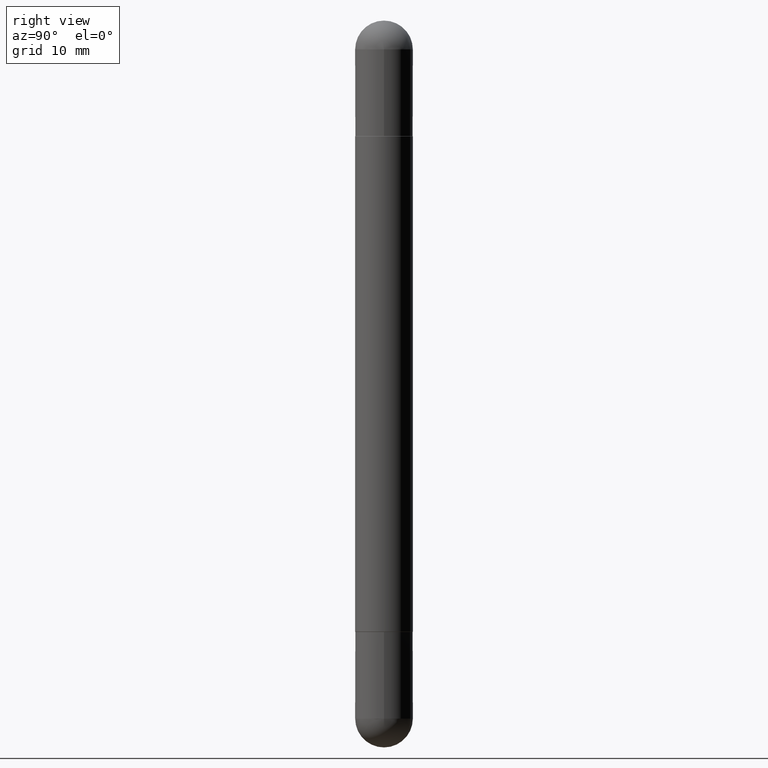
[diagram: clean part render]
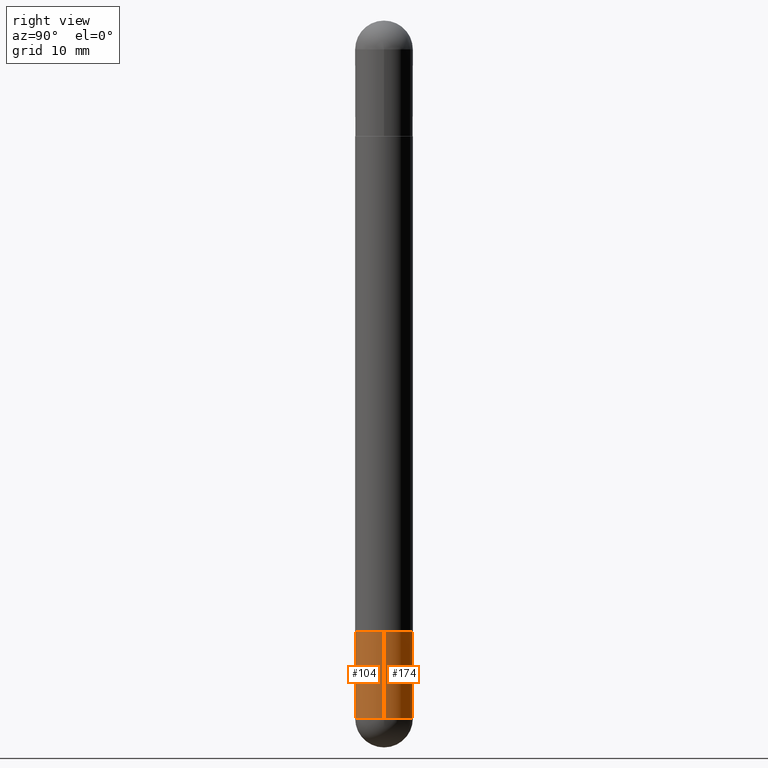
[diagram: same view with one multi-face feature highlighted, each face labeled with its STEP entity id]
A machine part, right view. The highlighted faces form ONE feature: a constant-radius fillet chain: 2 tangent blend faces with common blend radius 2.5006 mm. The faces share edges in the B-rep.
Their STEP definitions:
[1] entity #104 (Cylinder):
#57 = ORIENTED_EDGE ( 'NONE', *, *, #240, .T. ) ;
#70 = ORIENTED_EDGE ( 'NONE', *, *, #270, .F. ) ;
#78 = DIRECTION ( 'NONE',  ( -2.445468806185136597E-29, 3.491481338843145583E-15, 1.000000000000000000 ) ) ;
#104 = ADVANCED_FACE ( 'NONE', ( #731 ), #670, .T. ) ;
#106 = DIRECTION ( 'NONE',  ( 1.000000000000000000, -6.982962677686266711E-15, 4.876176775795935793E-29 ) ) ;
#115 = CARTESIAN_POINT ( 'NONE',  ( 5.824739876012068780E-29, -8.316184826923546689E-15, -2.381850000000000467 ) ) ;
#121 = DIRECTION ( 'NONE',  ( 1.000000000000000000, -6.982962677686265922E-15, 0.000000000000000000 ) ) ;
#126 = AXIS2_PLACEMENT_3D ( 'NONE', #738, #301, #106 ) ;
#132 = DIRECTION ( 'NONE',  ( -2.445468806185136597E-29, 3.491481338843145583E-15, 1.000000000000000000 ) ) ;
#188 = DIRECTION ( 'NONE',  ( -2.445468806185136877E-29, 3.491481338843145188E-15, 1.000000000000000000 ) ) ;
#201 = DIRECTION ( 'NONE',  ( 1.000000000000000000, -6.982962677686273810E-15, 0.000000000000000000 ) ) ;
#220 = LINE ( 'NONE', #695, #455 ) ;
#240 = EDGE_CURVE ( 'NONE', #491, #658, #680, .T. ) ;
#261 = EDGE_CURVE ( 'NONE', #658, #544, #563, .T. ) ;
#270 = EDGE_CURVE ( 'NONE', #298, #544, #377, .T. ) ;
#298 = VERTEX_POINT ( 'NONE', #385 ) ;
#301 = DIRECTION ( 'NONE',  ( -2.445468806185136597E-29, 3.491481338843145583E-15, 1.000000000000000000 ) ) ;
#329 = ORIENTED_EDGE ( 'NONE', *, *, #618, .T. ) ;
#340 = AXIS2_PLACEMENT_3D ( 'NONE', #115, #369, #460 ) ;
#342 = CARTESIAN_POINT ( 'NONE',  ( -6.995293233557624958E-16, -0.09845000000000865559, -2.381850000000000023 ) ) ;
#352 = CARTESIAN_POINT ( 'NONE',  ( -0.09845000000000000973, -7.101225570921009731E-15, -2.381850000000000467 ) ) ;
#356 = ORIENTED_EDGE ( 'NONE', *, *, #386, .F. ) ;
#369 = DIRECTION ( 'NONE',  ( -2.445468806185136597E-29, 3.491481338843145583E-15, 1.000000000000000000 ) ) ;
#377 = CIRCLE ( 'NONE', #536, 0.09844999999999999585 ) ;
#385 = CARTESIAN_POINT ( 'NONE',  ( -0.09844999999999999585, -7.101225570921008942E-15, -2.086600000000000232 ) ) ;
#386 = EDGE_CURVE ( 'NONE', #573, #298, #220, .T. ) ;
#455 = VECTOR ( 'NONE', #645, 39.37007874015748143 ) ;
#460 = DIRECTION ( 'NONE',  ( 1.000000000000000000, -6.982962677686273810E-15, 0.000000000000000000 ) ) ;
#491 = VERTEX_POINT ( 'NONE', #342 ) ;
#536 = AXIS2_PLACEMENT_3D ( 'NONE', #751, #78, #121 ) ;
#538 = CARTESIAN_POINT ( 'NONE',  ( 0.09844999999999999585, -7.972797637248321554E-15, -2.086600000000000232 ) ) ;
#544 = VERTEX_POINT ( 'NONE', #538 ) ;
#560 = CARTESIAN_POINT ( 'NONE',  ( 5.824739876012068780E-29, -8.316184826923546689E-15, -2.381850000000000467 ) ) ;
#563 = LINE ( 'NONE', #748, #638 ) ;
#573 = VERTEX_POINT ( 'NONE', #352 ) ;
#618 = EDGE_CURVE ( 'NONE', #573, #491, #629, .T. ) ;
#628 = AXIS2_PLACEMENT_3D ( 'NONE', #560, #132, #201 ) ;
#629 = CIRCLE ( 'NONE', #340, 0.09845000000000000973 ) ;
#638 = VECTOR ( 'NONE', #188, 39.37007874015748143 ) ;
#645 = DIRECTION ( 'NONE',  ( -2.445468806185136877E-29, 3.491481338843145188E-15, 1.000000000000000000 ) ) ;
#653 = CARTESIAN_POINT ( 'NONE',  ( 0.09845000000000000973, -8.488227569895042768E-15, -2.381850000000000467 ) ) ;
#658 = VERTEX_POINT ( 'NONE', #653 ) ;
#670 = CYLINDRICAL_SURFACE ( 'NONE', #126, 0.09845000000000000973 ) ;
#680 = CIRCLE ( 'NONE', #628, 0.09845000000000000973 ) ;
#695 = CARTESIAN_POINT ( 'NONE',  ( -0.09845000000000000973, 6.995293233558187021E-16, -4.842691596355954742E-30 ) ) ;
#696 = ORIENTED_EDGE ( 'NONE', *, *, #261, .T. ) ;
#731 = FACE_OUTER_BOUND ( 'NONE', #745, .T. ) ;
#738 = CARTESIAN_POINT ( 'NONE',  ( 0.000000000000000000, 0.000000000000000000, 0.000000000000000000 ) ) ;
#745 = EDGE_LOOP ( 'NONE', ( #356, #329, #57, #696, #70 ) ) ;
#748 = CARTESIAN_POINT ( 'NONE',  ( 0.09845000000000000973, -6.874726756182130531E-16, 4.800596035771099214E-30 ) ) ;
#751 = CARTESIAN_POINT ( 'NONE',  ( 5.102715210985907397E-29, -7.285324961630108994E-15, -2.086600000000000232 ) ) ;
[2] entity #174 (Cylinder):
#33 = CARTESIAN_POINT ( 'NONE',  ( 5.824739876012068780E-29, -8.316184826923546689E-15, -2.381850000000000467 ) ) ;
#61 = ORIENTED_EDGE ( 'NONE', *, *, #261, .F. ) ;
#62 = CIRCLE ( 'NONE', #507, 0.09845000000000000973 ) ;
#73 = DIRECTION ( 'NONE',  ( 1.000000000000000000, -6.982962677686265922E-15, 0.000000000000000000 ) ) ;
#124 = DIRECTION ( 'NONE',  ( -2.445468806185136597E-29, 3.491481338843145583E-15, 1.000000000000000000 ) ) ;
#138 = CIRCLE ( 'NONE', #494, 0.09845000000000000973 ) ;
#150 = CIRCLE ( 'NONE', #556, 0.09844999999999999585 ) ;
#174 = ADVANCED_FACE ( 'NONE', ( #371 ), #475, .T. ) ;
#177 = DIRECTION ( 'NONE',  ( -2.445468806185136597E-29, 3.491481338843145583E-15, 1.000000000000000000 ) ) ;
#188 = DIRECTION ( 'NONE',  ( -2.445468806185136877E-29, 3.491481338843145188E-15, 1.000000000000000000 ) ) ;
#199 = EDGE_CURVE ( 'NONE', #658, #348, #62, .T. ) ;
#220 = LINE ( 'NONE', #695, #455 ) ;
#257 = CARTESIAN_POINT ( 'NONE',  ( 5.102715210985907397E-29, -7.285324961630108994E-15, -2.086600000000000232 ) ) ;
#258 = DIRECTION ( 'NONE',  ( -2.445468806185136597E-29, 3.491481338843145583E-15, 1.000000000000000000 ) ) ;
#261 = EDGE_CURVE ( 'NONE', #658, #544, #563, .T. ) ;
#298 = VERTEX_POINT ( 'NONE', #385 ) ;
#300 = EDGE_CURVE ( 'NONE', #348, #573, #138, .T. ) ;
#327 = EDGE_CURVE ( 'NONE', #544, #298, #150, .T. ) ;
#348 = VERTEX_POINT ( 'NONE', #566 ) ;
#352 = CARTESIAN_POINT ( 'NONE',  ( -0.09845000000000000973, -7.101225570921009731E-15, -2.381850000000000467 ) ) ;
#366 = CARTESIAN_POINT ( 'NONE',  ( 0.000000000000000000, 0.000000000000000000, 0.000000000000000000 ) ) ;
#371 = FACE_OUTER_BOUND ( 'NONE', #682, .T. ) ;
#385 = CARTESIAN_POINT ( 'NONE',  ( -0.09844999999999999585, -7.101225570921008942E-15, -2.086600000000000232 ) ) ;
#386 = EDGE_CURVE ( 'NONE', #573, #298, #220, .T. ) ;
#455 = VECTOR ( 'NONE', #645, 39.37007874015748143 ) ;
#475 = CYLINDRICAL_SURFACE ( 'NONE', #781, 0.09845000000000000973 ) ;
#494 = AXIS2_PLACEMENT_3D ( 'NONE', #613, #258, #674 ) ;
#507 = AXIS2_PLACEMENT_3D ( 'NONE', #33, #530, #789 ) ;
#530 = DIRECTION ( 'NONE',  ( -2.445468806185136597E-29, 3.491481338843145583E-15, 1.000000000000000000 ) ) ;
#538 = CARTESIAN_POINT ( 'NONE',  ( 0.09844999999999999585, -7.972797637248321554E-15, -2.086600000000000232 ) ) ;
#544 = VERTEX_POINT ( 'NONE', #538 ) ;
#556 = AXIS2_PLACEMENT_3D ( 'NONE', #257, #124, #73 ) ;
#563 = LINE ( 'NONE', #748, #638 ) ;
#566 = CARTESIAN_POINT ( 'NONE',  ( 6.874726756182700483E-16, 0.09844999999999154427, -2.381850000000000911 ) ) ;
#573 = VERTEX_POINT ( 'NONE', #352 ) ;
#613 = CARTESIAN_POINT ( 'NONE',  ( 5.824739876012068780E-29, -8.316184826923546689E-15, -2.381850000000000467 ) ) ;
#638 = VECTOR ( 'NONE', #188, 39.37007874015748143 ) ;
#645 = DIRECTION ( 'NONE',  ( -2.445468806185136877E-29, 3.491481338843145188E-15, 1.000000000000000000 ) ) ;
#653 = CARTESIAN_POINT ( 'NONE',  ( 0.09845000000000000973, -8.488227569895042768E-15, -2.381850000000000467 ) ) ;
#658 = VERTEX_POINT ( 'NONE', #653 ) ;
#663 = DIRECTION ( 'NONE',  ( 1.000000000000000000, -6.982962677686266711E-15, 4.876176775795935793E-29 ) ) ;
#672 = ORIENTED_EDGE ( 'NONE', *, *, #300, .T. ) ;
#674 = DIRECTION ( 'NONE',  ( 1.000000000000000000, -6.982962677686273810E-15, 0.000000000000000000 ) ) ;
#682 = EDGE_LOOP ( 'NONE', ( #672, #791, #712, #61, #779 ) ) ;
#695 = CARTESIAN_POINT ( 'NONE',  ( -0.09845000000000000973, 6.995293233558187021E-16, -4.842691596355954742E-30 ) ) ;
#712 = ORIENTED_EDGE ( 'NONE', *, *, #327, .F. ) ;
#748 = CARTESIAN_POINT ( 'NONE',  ( 0.09845000000000000973, -6.874726756182130531E-16, 4.800596035771099214E-30 ) ) ;
#779 = ORIENTED_EDGE ( 'NONE', *, *, #199, .T. ) ;
#781 = AXIS2_PLACEMENT_3D ( 'NONE', #366, #177, #663 ) ;
#789 = DIRECTION ( 'NONE',  ( 1.000000000000000000, -6.982962677686273810E-15, 0.000000000000000000 ) ) ;
#791 = ORIENTED_EDGE ( 'NONE', *, *, #386, .T. ) ;